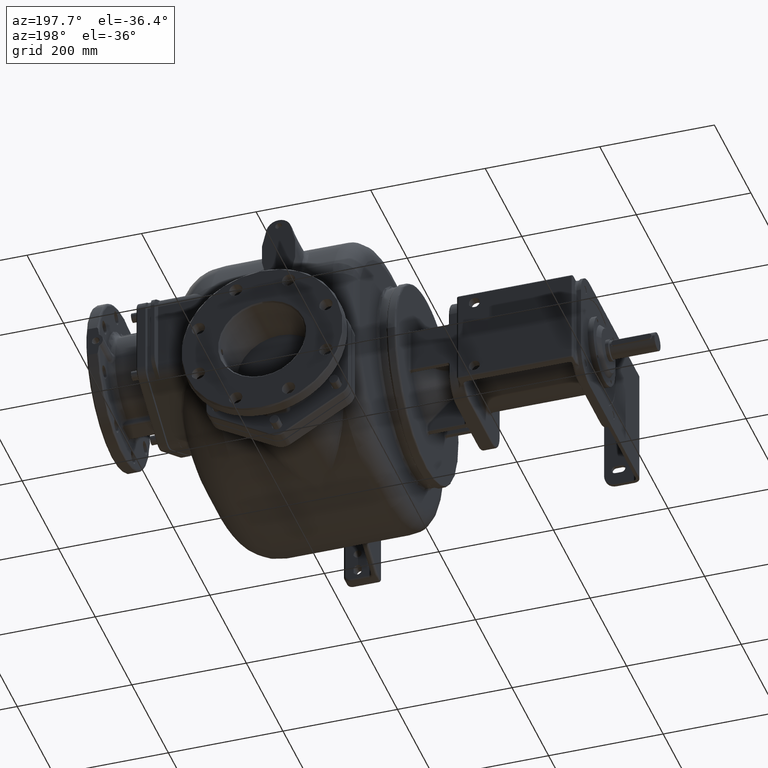
[diagram: clean part render]
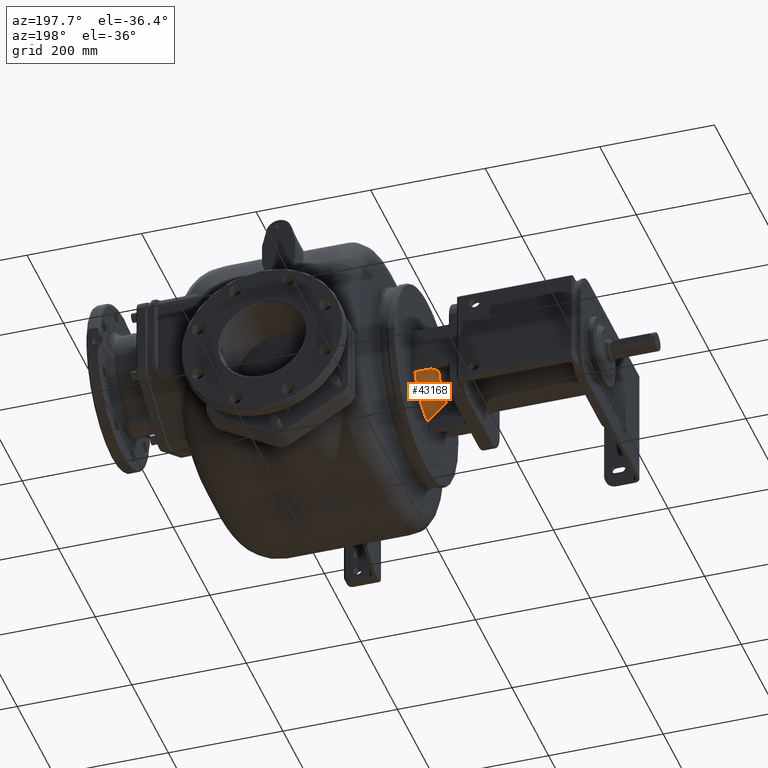
[diagram: same view with one face highlighted and labeled with its STEP entity id]
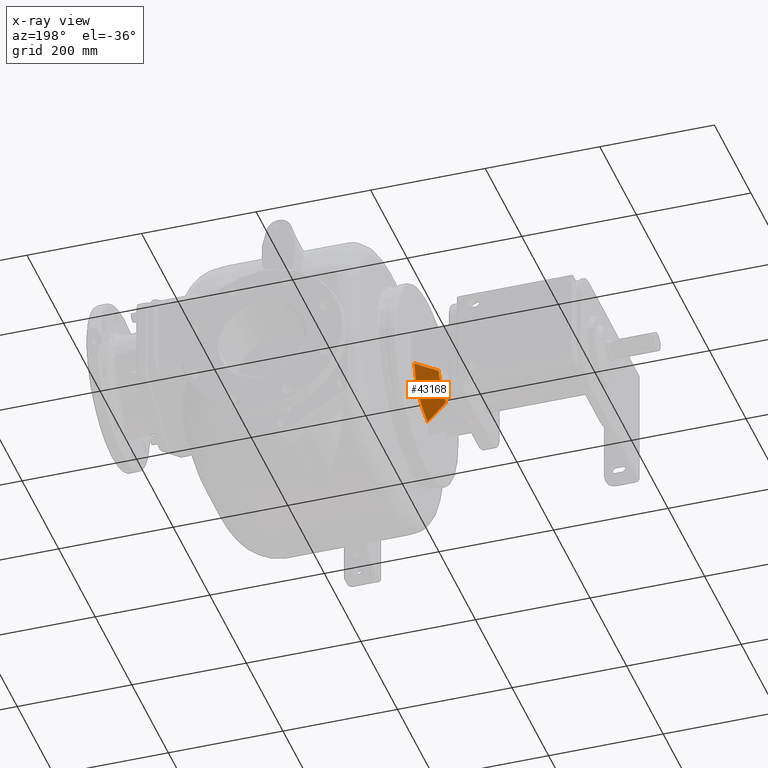
[diagram: x-ray of the same camera — body ghosted, the highlighted face saturated]
A machine part, auxiliary view. The second image highlights one B-rep face of the part: STEP entity #43168.
The next image is the same camera in x-ray: the body ghosted, the highlighted face saturated — about 0% of this face is hidden behind the body in this view.
In plain terms, the highlighted conical surface has half-angle 45 deg.
Its self-contained STEP definition (entity closure, byte-faithful):
#11699=CARTESIAN_POINT('',(-1.924289326124E2,2.377979841936E2,
-8.151262542376E1));
#11753=CARTESIAN_POINT('',(-1.924289321881E2,2.3E2,0.E0));
#11754=DIRECTION('',(1.E0,0.E0,0.E0));
#11755=DIRECTION('',(0.E0,9.523118343316E-2,-9.954551831710E-1));
#11756=AXIS2_PLACEMENT_3D('',#11753,#11754,#11755);
#15058=CARTESIAN_POINT('',(-2.244913782700E2,2.376732890247E2,
-4.922789121105E1));
#15059=CARTESIAN_POINT('',(-2.236460595430E2,2.376786058452E2,
-5.008258871748E1));
#15060=CARTESIAN_POINT('',(-2.218601334655E2,2.376893116067E2,
-5.188742255569E1));
#15061=CARTESIAN_POINT('',(-2.189420832207E2,2.377051070900E2,
-5.483344214618E1));
#15062=CARTESIAN_POINT('',(-2.156431246781E2,2.377211545407E2,
-5.816089021351E1));
#15063=CARTESIAN_POINT('',(-2.118966302832E2,2.377373776204E2,
-6.193626623303E1));
#15064=CARTESIAN_POINT('',(-2.077318088056E2,2.377533197865E2,
-6.612955013686E1));
#15065=CARTESIAN_POINT('',(-2.031640966881E2,2.377687145728E2,
-7.072482561174E1));
#15066=CARTESIAN_POINT('',(-1.981366389738E2,2.377835905264E2,
-7.577899154441E1));
#15067=CARTESIAN_POINT('',(-1.943922252098E2,2.377932629123E2,
-7.954082097917E1));
#15068=CARTESIAN_POINT('',(-1.924289326124E2,2.377979841936E2,
-8.151262542376E1));
#15070=CARTESIAN_POINT('',(-1.924289326054E2,3.108983563661E2,
-1.267172431360E1));
#15071=CARTESIAN_POINT('',(-1.941275492268E2,3.091800677508E2,
-1.266508651657E1));
#15072=CARTESIAN_POINT('',(-1.973794742502E2,3.058880993988E2,
-1.265156905083E1));
#15073=CARTESIAN_POINT('',(-2.018072944525E2,3.013990022940E2,
-1.263086605211E1));
#15074=CARTESIAN_POINT('',(-2.058302715750E2,2.973136896284E2,
-1.260979106110E1));
#15075=CARTESIAN_POINT('',(-2.093915537394E2,2.936909745744E2,
-1.258901018525E1));
#15076=CARTESIAN_POINT('',(-2.125663417736E2,2.904556977456E2,
-1.256854144731E1));
#15077=CARTESIAN_POINT('',(-2.154317203941E2,2.875303357166E2,
-1.254823943383E1));
#15078=CARTESIAN_POINT('',(-2.180145999682E2,2.848883446345E2,
-1.252823121084E1));
#15079=CARTESIAN_POINT('',(-2.203566261415E2,2.824880139329E2,
-1.250849941719E1));
#15080=CARTESIAN_POINT('',(-2.225021878710E2,2.802846110190E2,
-1.248892761451E1));
#15081=CARTESIAN_POINT('',(-2.238452318034E2,2.789024518708E2,
-1.247569878606E1));
#15082=CARTESIAN_POINT('',(-2.244913782010E2,2.782367734133E2,
-1.246909464788E1));
#15084=CARTESIAN_POINT('',(-2.244913780286E2,2.3E2,0.E0));
#15085=DIRECTION('',(1.E0,0.E0,0.E0));
#15086=DIRECTION('',(0.E0,1.540130482677E-1,-9.880688138805E-1));
#15087=AXIS2_PLACEMENT_3D('',#15084,#15085,#15086);
#16345=CARTESIAN_POINT('',(-2.244913782010E2,2.782367734133E2,
-1.246909464788E1));
#22481=VERTEX_POINT('',#11699);
#22485=VERTEX_POINT('',#15058);
#22513=VERTEX_POINT('',#16345);
#22515=VERTEX_POINT('',#15070);
#43155=CARTESIAN_POINT('',(-2.084601551084E2,2.3E2,0.E0));
#43156=DIRECTION('',(1.E0,0.E0,0.E0));
#43157=DIRECTION('',(0.E0,-1.E0,0.E0));
#43158=AXIS2_PLACEMENT_3D('',#43155,#43156,#43157);
#43159=CONICAL_SURFACE('',#43158,6.585355339059E1,4.5E1);
#43160=ORIENTED_EDGE('',*,*,#43146,.T.);
#43161=ORIENTED_EDGE('',*,*,#37695,.T.);
#43163=ORIENTED_EDGE('',*,*,#43162,.T.);
#43165=ORIENTED_EDGE('',*,*,#43164,.F.);
#43166=EDGE_LOOP('',(#43160,#43161,#43163,#43165));
#43167=FACE_OUTER_BOUND('',#43166,.F.);
#43168=ADVANCED_FACE('',(#43167),#43159,.T.);
#11757=CIRCLE('',#11756,8.188477631085E1);
#15069=B_SPLINE_CURVE_WITH_KNOTS('',3,(#15058,#15059,#15060,#15061,#15062,
#15063,#15064,#15065,#15066,#15067,#15068),.UNSPECIFIED.,.F.,.F.,(4,1,1,1,1,1,1,
1,4),(0.E0,1.25E-1,2.5E-1,3.75E-1,5.E-1,6.25E-1,7.5E-1,8.75E-1,1.E0),
.UNSPECIFIED.);
#15083=B_SPLINE_CURVE_WITH_KNOTS('',3,(#15070,#15071,#15072,#15073,#15074,
#15075,#15076,#15077,#15078,#15079,#15080,#15081,#15082),.UNSPECIFIED.,.F.,.F.,(
4,1,1,1,1,1,1,1,1,1,4),(0.E0,1.E-1,2.E-1,3.E-1,4.E-1,5.E-1,6.E-1,7.E-1,8.E-1,
9.E-1,1.E0),.UNSPECIFIED.);
#15088=CIRCLE('',#15087,4.982233047034E1);
#37695=EDGE_CURVE('',#22481,#22515,#11757,.T.);
#43146=EDGE_CURVE('',#22485,#22481,#15069,.T.);
#43162=EDGE_CURVE('',#22515,#22513,#15083,.T.);
#43164=EDGE_CURVE('',#22485,#22513,#15088,.T.);